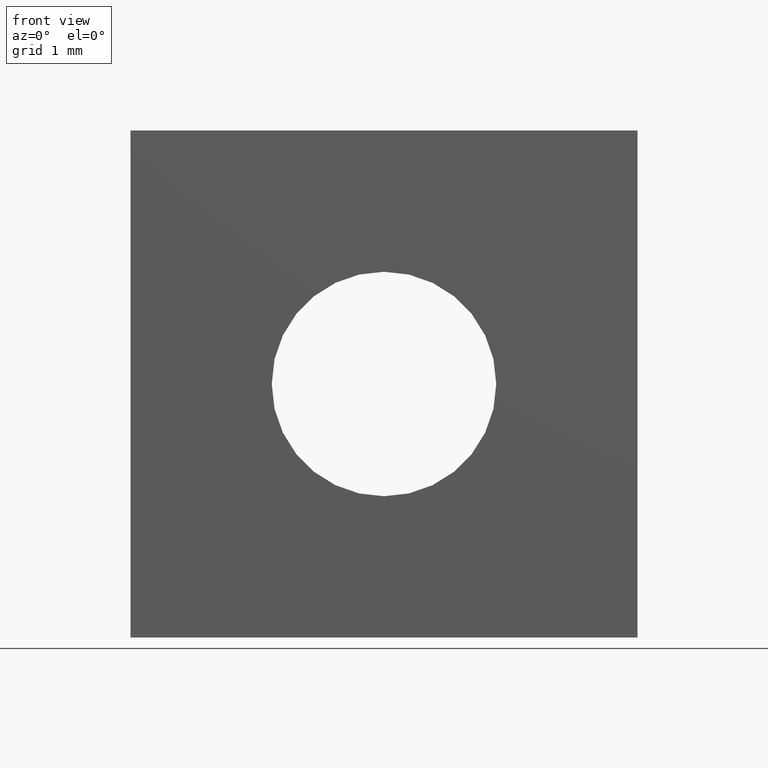
[diagram: clean part render]
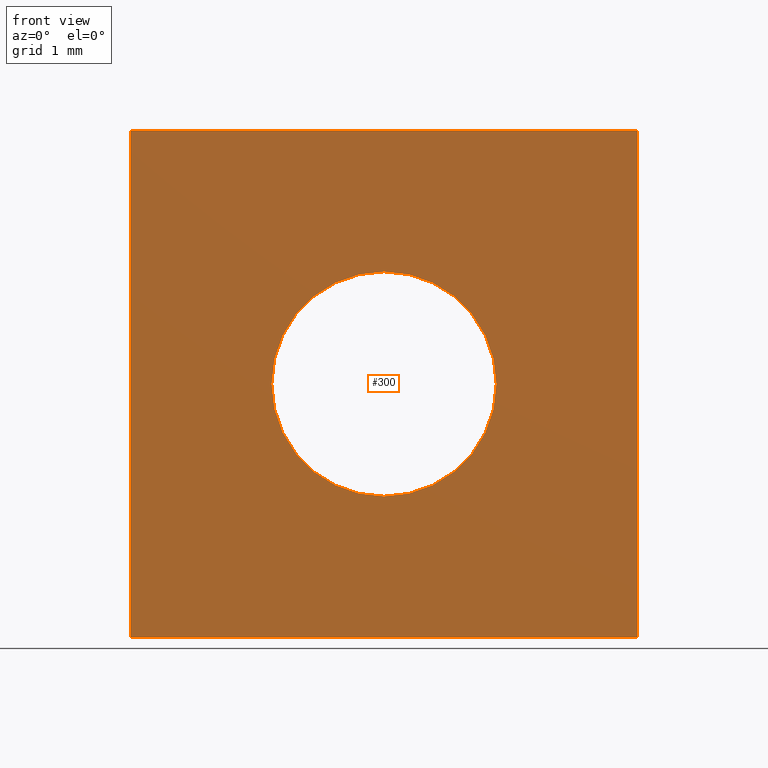
[diagram: same view with one face highlighted and labeled with its STEP entity id]
A machine part, front view. The second image highlights one B-rep face of the part: STEP entity #300.
In plain terms, the highlighted planar face has unit normal (-0, 1, 0).
Its self-contained STEP definition (entity closure, byte-faithful):
#6 = EDGE_CURVE ( 'NONE', #362, #265, #137, .T. ) ;
#10 = EDGE_CURVE ( 'NONE', #265, #474, #270, .T. ) ;
#28 = DIRECTION ( 'NONE',  ( 0.0000000000000000000, -0.0000000000000000000, 1.000000000000000000 ) ) ;
#48 = VERTEX_POINT ( 'NONE', #258 ) ;
#55 = VECTOR ( 'NONE', #426, 1000.000000000000000 ) ;
#66 = CARTESIAN_POINT ( 'NONE',  ( 3.500000000000000000, 0.0000000000000000000, 3.500000000000000000 ) ) ;
#71 = VECTOR ( 'NONE', #407, 1000.000000000000000 ) ;
#74 = ORIENTED_EDGE ( 'NONE', *, *, #188, .T. ) ;
#88 = ORIENTED_EDGE ( 'NONE', *, *, #6, .F. ) ;
#110 = DIRECTION ( 'NONE',  ( -0.0000000000000000000, 1.000000000000000000, 0.0000000000000000000 ) ) ;
#118 = FACE_OUTER_BOUND ( 'NONE', #328, .T. ) ;
#121 = CARTESIAN_POINT ( 'NONE',  ( 1.898202538678397500E-016, 0.0000000000000000000, -1.550000000000000000 ) ) ;
#130 = VERTEX_POINT ( 'NONE', #172 ) ;
#137 = LINE ( 'NONE', #178, #364 ) ;
#139 = CIRCLE ( 'NONE', #341, 1.550000000000000000 ) ;
#154 = DIRECTION ( 'NONE',  ( -0.0000000000000000000, 1.000000000000000000, 0.0000000000000000000 ) ) ;
#172 = CARTESIAN_POINT ( 'NONE',  ( 0.0000000000000000000, 0.0000000000000000000, 1.550000000000000000 ) ) ;
#178 = CARTESIAN_POINT ( 'NONE',  ( -3.499999999999999100, 0.0000000000000000000, 3.500000000000000900 ) ) ;
#188 = EDGE_CURVE ( 'NONE', #488, #130, #139, .T. ) ;
#198 = AXIS2_PLACEMENT_3D ( 'NONE', #393, #110, #28 ) ;
#221 = LINE ( 'NONE', #309, #453 ) ;
#227 = CARTESIAN_POINT ( 'NONE',  ( 0.0000000000000000000, 0.0000000000000000000, 0.0000000000000000000 ) ) ;
#237 = DIRECTION ( 'NONE',  ( 0.0000000000000000000, 0.0000000000000000000, 1.000000000000000000 ) ) ;
#256 = DIRECTION ( 'NONE',  ( 1.000000000000000000, 0.0000000000000000000, -1.239088197126291100E-016 ) ) ;
#258 = CARTESIAN_POINT ( 'NONE',  ( -3.499999999999999600, 0.0000000000000000000, -3.500000000000000000 ) ) ;
#265 = VERTEX_POINT ( 'NONE', #66 ) ;
#268 = DIRECTION ( 'NONE',  ( -0.0000000000000000000, 1.000000000000000000, 0.0000000000000000000 ) ) ;
#270 = LINE ( 'NONE', #384, #55 ) ;
#285 = CARTESIAN_POINT ( 'NONE',  ( -3.499999999999999100, 0.0000000000000000000, 3.500000000000000900 ) ) ;
#296 = EDGE_CURVE ( 'NONE', #474, #48, #221, .T. ) ;
#300 = ADVANCED_FACE ( 'NONE', ( #432, #118 ), #399, .F. ) ;
#309 = CARTESIAN_POINT ( 'NONE',  ( -3.499999999999999600, 0.0000000000000000000, -3.500000000000000000 ) ) ;
#328 = EDGE_LOOP ( 'NONE', ( #456, #343, #507, #88 ) ) ;
#332 = EDGE_CURVE ( 'NONE', #48, #362, #504, .T. ) ;
#338 = AXIS2_PLACEMENT_3D ( 'NONE', #447, #154, #237 ) ;
#341 = AXIS2_PLACEMENT_3D ( 'NONE', #227, #268, #436 ) ;
#343 = ORIENTED_EDGE ( 'NONE', *, *, #296, .F. ) ;
#362 = VERTEX_POINT ( 'NONE', #285 ) ;
#364 = VECTOR ( 'NONE', #256, 1000.000000000000000 ) ;
#368 = CARTESIAN_POINT ( 'NONE',  ( -3.499999999999999600, 0.0000000000000000000, -3.500000000000000000 ) ) ;
#379 = EDGE_CURVE ( 'NONE', #130, #488, #446, .T. ) ;
#384 = CARTESIAN_POINT ( 'NONE',  ( 3.499999999999999600, 0.0000000000000000000, -3.500000000000000000 ) ) ;
#393 = CARTESIAN_POINT ( 'NONE',  ( 0.0000000000000000000, 0.0000000000000000000, 0.0000000000000000000 ) ) ;
#399 = PLANE ( 'NONE',  #198 ) ;
#407 = DIRECTION ( 'NONE',  ( 6.195440985631452900E-017, 0.0000000000000000000, 1.000000000000000000 ) ) ;
#411 = CARTESIAN_POINT ( 'NONE',  ( 3.499999999999999600, 0.0000000000000000000, -3.500000000000000000 ) ) ;
#426 = DIRECTION ( 'NONE',  ( -6.195440985631454100E-017, -0.0000000000000000000, -1.000000000000000000 ) ) ;
#432 = FACE_BOUND ( 'NONE', #464, .T. ) ;
#435 = ORIENTED_EDGE ( 'NONE', *, *, #379, .T. ) ;
#436 = DIRECTION ( 'NONE',  ( 0.0000000000000000000, 0.0000000000000000000, 1.000000000000000000 ) ) ;
#446 = CIRCLE ( 'NONE', #338, 1.550000000000000000 ) ;
#447 = CARTESIAN_POINT ( 'NONE',  ( 0.0000000000000000000, 0.0000000000000000000, 0.0000000000000000000 ) ) ;
#453 = VECTOR ( 'NONE', #473, 1000.000000000000000 ) ;
#456 = ORIENTED_EDGE ( 'NONE', *, *, #332, .F. ) ;
#464 = EDGE_LOOP ( 'NONE', ( #435, #74 ) ) ;
#473 = DIRECTION ( 'NONE',  ( -1.000000000000000000, -0.0000000000000000000, -0.0000000000000000000 ) ) ;
#474 = VERTEX_POINT ( 'NONE', #411 ) ;
#488 = VERTEX_POINT ( 'NONE', #121 ) ;
#504 = LINE ( 'NONE', #368, #71 ) ;
#507 = ORIENTED_EDGE ( 'NONE', *, *, #10, .F. ) ;